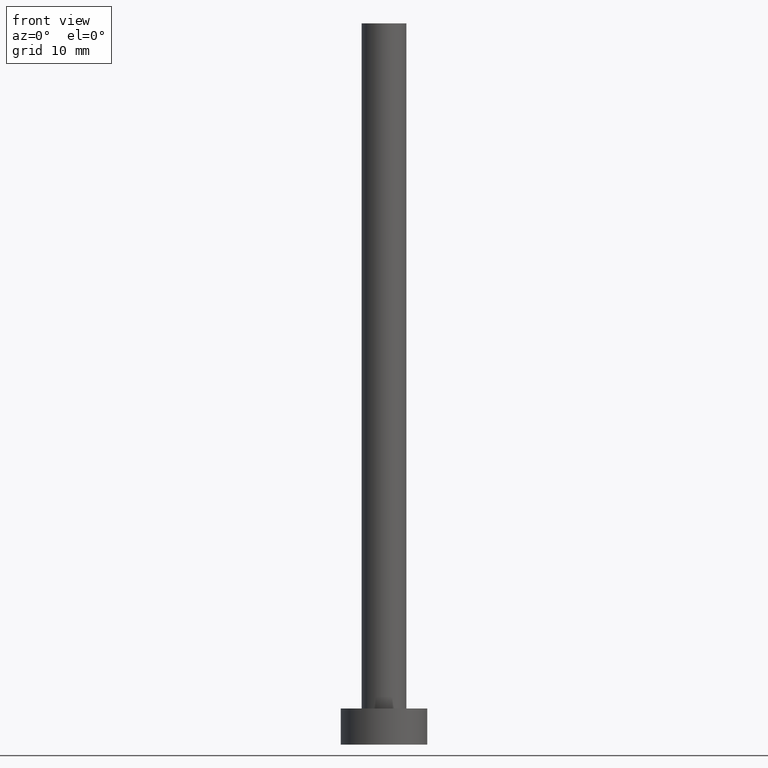
[diagram: clean part render]
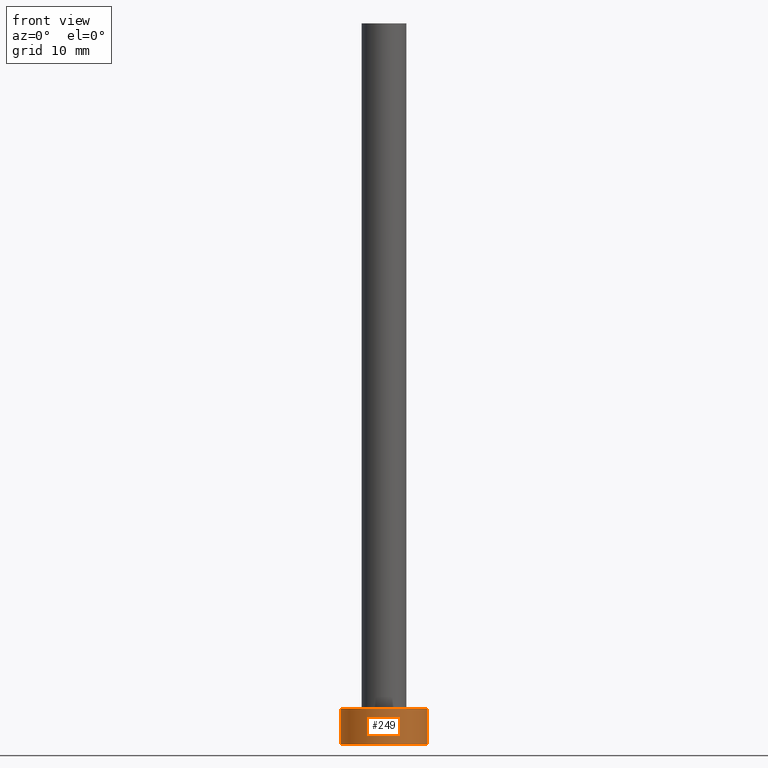
[diagram: same view with one face highlighted and labeled with its STEP entity id]
A machine part, front view. The second image highlights one B-rep face of the part: STEP entity #249.
In plain terms, the highlighted cylindrical surface (partial cylindrical patch) has radius 6 mm, axis along (-0, -0, -1).
Its self-contained STEP definition (entity closure, byte-faithful):
#3 = DIRECTION ( 'NONE',  ( -0.000000000000000000, -0.000000000000000000, -1.000000000000000000 ) ) ;
#5 = VERTEX_POINT ( 'NONE', #123 ) ;
#7 = DIRECTION ( 'NONE',  ( 0.000000000000000000, 0.000000000000000000, 1.000000000000000000 ) ) ;
#8 = CARTESIAN_POINT ( 'NONE',  ( -6.000000000000000888, 0.000000000000000000, 5.000000000000000000 ) ) ;
#11 = EDGE_CURVE ( 'NONE', #116, #5, #95, .T. ) ;
#12 = DIRECTION ( 'NONE',  ( 1.000000000000000000, 0.000000000000000000, 0.000000000000000000 ) ) ;
#24 = ORIENTED_EDGE ( 'NONE', *, *, #176, .T. ) ;
#29 = DIRECTION ( 'NONE',  ( -1.000000000000000000, 0.000000000000000000, 0.000000000000000000 ) ) ;
#30 = CIRCLE ( 'NONE', #82, 6.000000000000000888 ) ;
#38 = EDGE_CURVE ( 'NONE', #237, #116, #137, .T. ) ;
#40 = ORIENTED_EDGE ( 'NONE', *, *, #11, .F. ) ;
#52 = CARTESIAN_POINT ( 'NONE',  ( -6.000000000000000888, 0.000000000000000000, 0.000000000000000000 ) ) ;
#64 = AXIS2_PLACEMENT_3D ( 'NONE', #199, #78, #218 ) ;
#73 = CARTESIAN_POINT ( 'NONE',  ( 0.000000000000000000, 0.000000000000000000, 5.000000000000000000 ) ) ;
#74 = VECTOR ( 'NONE', #3, 1000.000000000000000 ) ;
#78 = DIRECTION ( 'NONE',  ( 0.000000000000000000, 0.000000000000000000, 1.000000000000000000 ) ) ;
#82 = AXIS2_PLACEMENT_3D ( 'NONE', #148, #7, #12 ) ;
#87 = LINE ( 'NONE', #8, #210 ) ;
#95 = LINE ( 'NONE', #254, #74 ) ;
#116 = VERTEX_POINT ( 'NONE', #243 ) ;
#121 = VERTEX_POINT ( 'NONE', #52 ) ;
#123 = CARTESIAN_POINT ( 'NONE',  ( 6.000000000000000888, 7.347880794884120722E-16, 0.000000000000000000 ) ) ;
#131 = EDGE_CURVE ( 'NONE', #237, #121, #87, .T. ) ;
#137 = CIRCLE ( 'NONE', #64, 6.000000000000000888 ) ;
#148 = CARTESIAN_POINT ( 'NONE',  ( 0.000000000000000000, 0.000000000000000000, 0.000000000000000000 ) ) ;
#161 = ORIENTED_EDGE ( 'NONE', *, *, #38, .F. ) ;
#162 = AXIS2_PLACEMENT_3D ( 'NONE', #73, #206, #29 ) ;
#176 = EDGE_CURVE ( 'NONE', #121, #5, #30, .T. ) ;
#187 = CARTESIAN_POINT ( 'NONE',  ( -6.000000000000000888, 0.000000000000000000, 5.000000000000000000 ) ) ;
#199 = CARTESIAN_POINT ( 'NONE',  ( 0.000000000000000000, 0.000000000000000000, 5.000000000000000000 ) ) ;
#203 = EDGE_LOOP ( 'NONE', ( #40, #161, #239, #24 ) ) ;
#206 = DIRECTION ( 'NONE',  ( -0.000000000000000000, -0.000000000000000000, -1.000000000000000000 ) ) ;
#210 = VECTOR ( 'NONE', #244, 1000.000000000000000 ) ;
#218 = DIRECTION ( 'NONE',  ( 1.000000000000000000, 0.000000000000000000, 0.000000000000000000 ) ) ;
#223 = CYLINDRICAL_SURFACE ( 'NONE', #162, 6.000000000000000888 ) ;
#225 = FACE_OUTER_BOUND ( 'NONE', #203, .T. ) ;
#237 = VERTEX_POINT ( 'NONE', #187 ) ;
#239 = ORIENTED_EDGE ( 'NONE', *, *, #131, .T. ) ;
#243 = CARTESIAN_POINT ( 'NONE',  ( 6.000000000000000888, 7.347880794884120722E-16, 5.000000000000000000 ) ) ;
#244 = DIRECTION ( 'NONE',  ( -0.000000000000000000, -0.000000000000000000, -1.000000000000000000 ) ) ;
#249 = ADVANCED_FACE ( 'NONE', ( #225 ), #223, .T. ) ;
#254 = CARTESIAN_POINT ( 'NONE',  ( 6.000000000000000888, 7.347880794884120722E-16, 5.000000000000000000 ) ) ;